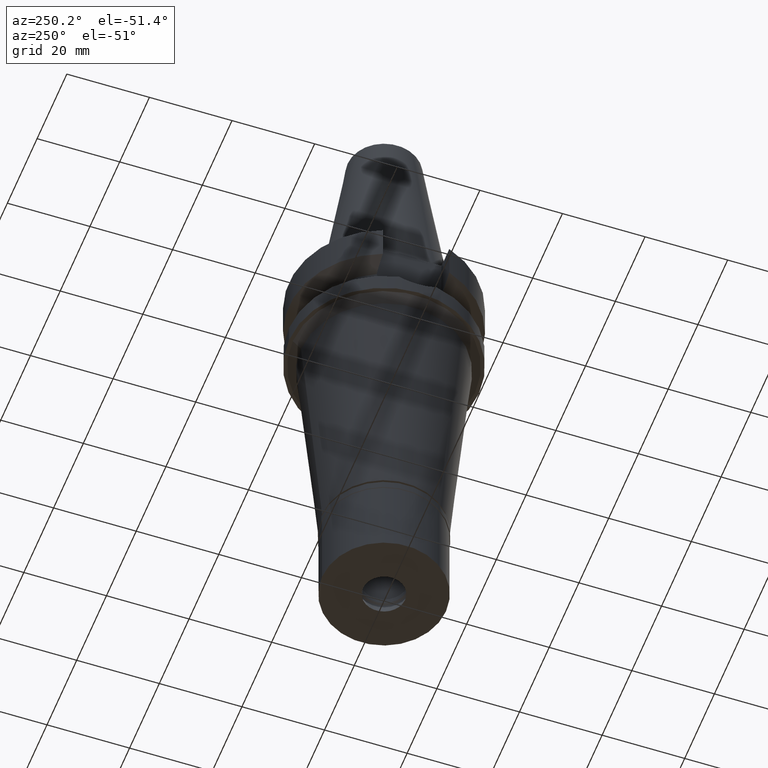
[diagram: clean part render]
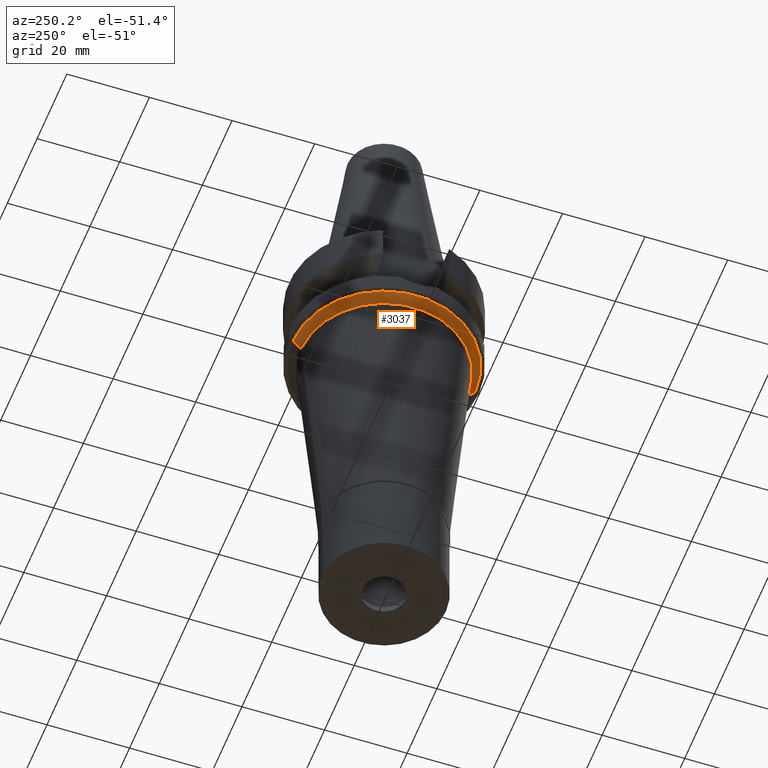
[diagram: same view with one face highlighted and labeled with its STEP entity id]
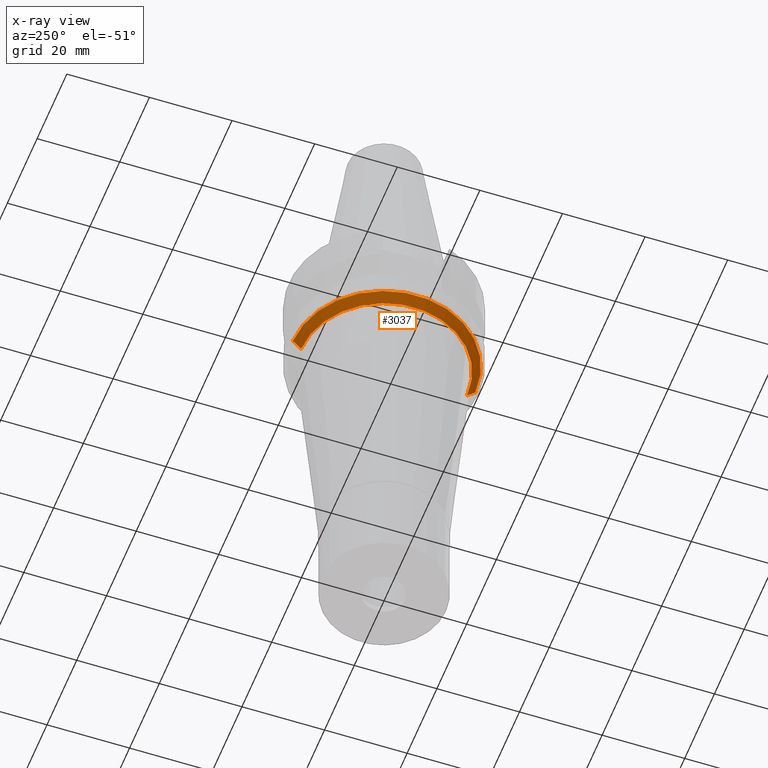
[diagram: x-ray of the same camera — body ghosted, the highlighted face saturated]
A machine part, auxiliary view. The second image highlights one B-rep face of the part: STEP entity #3037.
The next image is the same camera in x-ray: the body ghosted, the highlighted face saturated — about 0% of this face is hidden behind the body in this view.
In plain terms, the highlighted conical surface has half-angle 45 deg.
Its self-contained STEP definition (entity closure, byte-faithful):
#45 = DIRECTION ( 'NONE',  ( 0.0000000000000000000, -1.000000000000000000, 0.0000000000000000000 ) ) ;
#310 = FACE_OUTER_BOUND ( 'NONE', #442, .T. ) ;
#335 = CARTESIAN_POINT ( 'NONE',  ( 0.0000000000000000000, 0.0000000000000000000, -22.00000000000000000 ) ) ;
#341 = EDGE_CURVE ( 'NONE', #1337, #1472, #2861, .T. ) ;
#442 = EDGE_LOOP ( 'NONE', ( #1807, #2281, #480, #1943 ) ) ;
#444 = CIRCLE ( 'NONE', #2316, 22.09184021721000235 ) ;
#480 = ORIENTED_EDGE ( 'NONE', *, *, #1895, .T. ) ;
#482 = DIRECTION ( 'NONE',  ( 0.0000000000000000000, 0.7071067811870975772, -0.7071067811859975683 ) ) ;
#622 = VERTEX_POINT ( 'NONE', #1623 ) ;
#720 = LINE ( 'NONE', #1426, #1886 ) ;
#742 = VERTEX_POINT ( 'NONE', #1384 ) ;
#759 = DIRECTION ( 'NONE',  ( 0.0000000000000000000, -0.7071067811870975772, -0.7071067811859975683 ) ) ;
#776 = CARTESIAN_POINT ( 'NONE',  ( 0.0000000000000000000, 22.09184021721000235, -22.00000000000000000 ) ) ;
#791 = DIRECTION ( 'NONE',  ( 0.0000000000000000000, 1.000000000000000000, 0.0000000000000000000 ) ) ;
#802 = DIRECTION ( 'NONE',  ( 0.0000000000000000000, 0.0000000000000000000, -1.000000000000000000 ) ) ;
#887 = EDGE_CURVE ( 'NONE', #742, #1472, #2380, .T. ) ;
#1035 = DIRECTION ( 'NONE',  ( 0.0000000000000000000, 0.0000000000000000000, 1.000000000000000000 ) ) ;
#1226 = EDGE_CURVE ( 'NONE', #622, #742, #720, .T. ) ;
#1231 = CARTESIAN_POINT ( 'NONE',  ( 0.0000000000000000000, 22.09184021721000235, -22.00000000000000000 ) ) ;
#1286 = CARTESIAN_POINT ( 'NONE',  ( 0.0000000000000000000, 0.0000000000000000000, -23.00000000000000000 ) ) ;
#1337 = VERTEX_POINT ( 'NONE', #1231 ) ;
#1384 = CARTESIAN_POINT ( 'NONE',  ( 0.0000000000000000000, -20.09184021720999880, -24.00000000000000000 ) ) ;
#1426 = CARTESIAN_POINT ( 'NONE',  ( 0.0000000000000000000, -22.09184021721000235, -22.00000000000000000 ) ) ;
#1459 = CARTESIAN_POINT ( 'NONE',  ( 0.0000000000000000000, 0.0000000000000000000, -24.00000000000000000 ) ) ;
#1472 = VERTEX_POINT ( 'NONE', #2438 ) ;
#1623 = CARTESIAN_POINT ( 'NONE',  ( 0.0000000000000000000, -22.09184021721000235, -22.00000000000000000 ) ) ;
#1807 = ORIENTED_EDGE ( 'NONE', *, *, #887, .F. ) ;
#1886 = VECTOR ( 'NONE', #482, 1000.000000000000000 ) ;
#1895 = EDGE_CURVE ( 'NONE', #622, #1337, #444, .T. ) ;
#1943 = ORIENTED_EDGE ( 'NONE', *, *, #341, .T. ) ;
#2272 = AXIS2_PLACEMENT_3D ( 'NONE', #1459, #2621, #45 ) ;
#2281 = ORIENTED_EDGE ( 'NONE', *, *, #1226, .F. ) ;
#2316 = AXIS2_PLACEMENT_3D ( 'NONE', #335, #802, #2681 ) ;
#2380 = CIRCLE ( 'NONE', #2272, 20.09184021720999880 ) ;
#2438 = CARTESIAN_POINT ( 'NONE',  ( 0.0000000000000000000, 20.09184021720999880, -24.00000000000000000 ) ) ;
#2570 = AXIS2_PLACEMENT_3D ( 'NONE', #1286, #1035, #791 ) ;
#2621 = DIRECTION ( 'NONE',  ( 0.0000000000000000000, 0.0000000000000000000, -1.000000000000000000 ) ) ;
#2667 = CONICAL_SURFACE ( 'NONE', #2570, 21.09184021720999880, 0.7853981633972997312 ) ;
#2681 = DIRECTION ( 'NONE',  ( 0.0000000000000000000, -1.000000000000000000, 0.0000000000000000000 ) ) ;
#2861 = LINE ( 'NONE', #776, #2869 ) ;
#2869 = VECTOR ( 'NONE', #759, 1000.000000000000000 ) ;
#3037 = ADVANCED_FACE ( 'NONE', ( #310 ), #2667, .T. ) ;